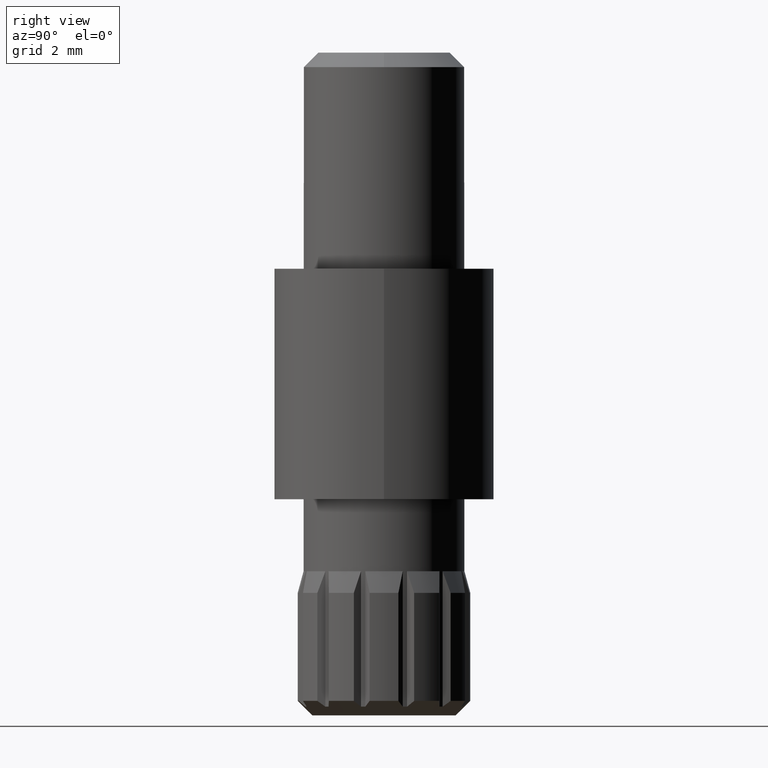
[diagram: clean part render]
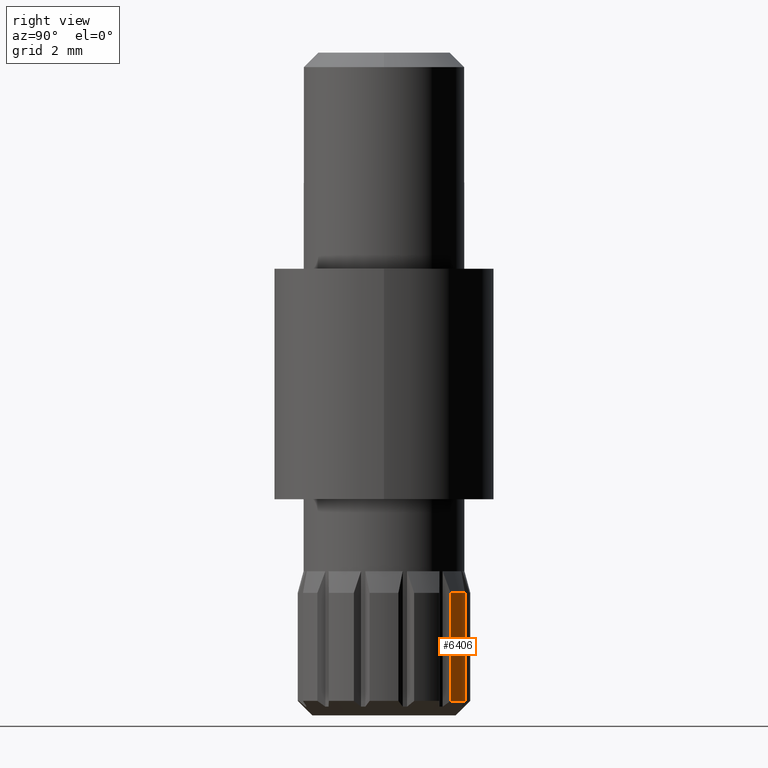
[diagram: same view with one face highlighted and labeled with its STEP entity id]
A machine part, right view. The second image highlights one B-rep face of the part: STEP entity #6406.
In plain terms, the highlighted cylindrical surface (partial cylindrical patch) has radius 3 mm, axis along (0, 0, -1).
Its self-contained STEP definition (entity closure, byte-faithful):
#555 = VECTOR ( 'NONE', #7110, 1000.000000000000000 ) ;
#1627 = CARTESIAN_POINT ( 'NONE',  ( 0.000000000000000000, 0.000000000000000000, 0.4999999999999998890 ) ) ;
#1743 = EDGE_LOOP ( 'NONE', ( #2440, #4811, #6465, #7202 ) ) ;
#1890 = VERTEX_POINT ( 'NONE', #12823 ) ;
#2009 = CARTESIAN_POINT ( 'NONE',  ( 1.912032647667126772, 2.311737691489898161, 4.250000000000000000 ) ) ;
#2261 = AXIS2_PLACEMENT_3D ( 'NONE', #2659, #5824, #4726 ) ;
#2440 = ORIENTED_EDGE ( 'NONE', *, *, #4262, .T. ) ;
#2659 = CARTESIAN_POINT ( 'NONE',  ( 0.000000000000000000, 0.000000000000000000, 4.250000000000000000 ) ) ;
#2805 = CIRCLE ( 'NONE', #2261, 3.000000000000000888 ) ;
#3396 = AXIS2_PLACEMENT_3D ( 'NONE', #1627, #9669, #5546 ) ;
#3895 = CYLINDRICAL_SURFACE ( 'NONE', #8490, 3.000000000000000444 ) ;
#4102 = CARTESIAN_POINT ( 'NONE',  ( 0.000000000000000000, 0.000000000000000000, 5.000000000000000000 ) ) ;
#4262 = EDGE_CURVE ( 'NONE', #6281, #5249, #2805, .T. ) ;
#4726 = DIRECTION ( 'NONE',  ( -1.000000000000000000, 0.000000000000000000, 0.000000000000000000 ) ) ;
#4811 = ORIENTED_EDGE ( 'NONE', *, *, #9017, .T. ) ;
#4980 = CARTESIAN_POINT ( 'NONE',  ( 1.046007243882688620, 2.811737691489899493, 4.250000000000000000 ) ) ;
#5249 = VERTEX_POINT ( 'NONE', #2009 ) ;
#5414 = DIRECTION ( 'NONE',  ( 0.000000000000000000, 0.000000000000000000, -1.000000000000000000 ) ) ;
#5546 = DIRECTION ( 'NONE',  ( -1.000000000000000000, 0.000000000000000000, 0.000000000000000000 ) ) ;
#5824 = DIRECTION ( 'NONE',  ( -0.000000000000000000, -0.000000000000000000, -1.000000000000000000 ) ) ;
#5881 = LINE ( 'NONE', #7709, #10920 ) ;
#6281 = VERTEX_POINT ( 'NONE', #4980 ) ;
#6406 = ADVANCED_FACE ( 'NONE', ( #6864 ), #3895, .T. ) ;
#6465 = ORIENTED_EDGE ( 'NONE', *, *, #9960, .F. ) ;
#6568 = CARTESIAN_POINT ( 'NONE',  ( 1.912032647667126106, 2.311737691489897273, 0.4999999999999998890 ) ) ;
#6748 = DIRECTION ( 'NONE',  ( 0.000000000000000000, 0.000000000000000000, -1.000000000000000000 ) ) ;
#6864 = FACE_OUTER_BOUND ( 'NONE', #1743, .T. ) ;
#7110 = DIRECTION ( 'NONE',  ( 0.000000000000000000, 0.000000000000000000, -1.000000000000000000 ) ) ;
#7202 = ORIENTED_EDGE ( 'NONE', *, *, #11070, .F. ) ;
#7709 = CARTESIAN_POINT ( 'NONE',  ( 1.046007243882688176, 2.811737691489898605, 5.000000000000000000 ) ) ;
#8490 = AXIS2_PLACEMENT_3D ( 'NONE', #4102, #5414, #10452 ) ;
#9017 = EDGE_CURVE ( 'NONE', #5249, #9372, #13017, .T. ) ;
#9372 = VERTEX_POINT ( 'NONE', #6568 ) ;
#9669 = DIRECTION ( 'NONE',  ( -0.000000000000000000, -0.000000000000000000, -1.000000000000000000 ) ) ;
#9960 = EDGE_CURVE ( 'NONE', #1890, #9372, #10932, .T. ) ;
#10452 = DIRECTION ( 'NONE',  ( -1.000000000000000000, 0.000000000000000000, 0.000000000000000000 ) ) ;
#10920 = VECTOR ( 'NONE', #6748, 1000.000000000000000 ) ;
#10932 = CIRCLE ( 'NONE', #3396, 3.000000000000000000 ) ;
#11070 = EDGE_CURVE ( 'NONE', #6281, #1890, #5881, .T. ) ;
#11274 = CARTESIAN_POINT ( 'NONE',  ( 1.912032647667126328, 2.311737691489897717, 5.000000000000000000 ) ) ;
#12823 = CARTESIAN_POINT ( 'NONE',  ( 1.046007243882687288, 2.811737691489899049, 0.4999999999999998890 ) ) ;
#13017 = LINE ( 'NONE', #11274, #555 ) ;